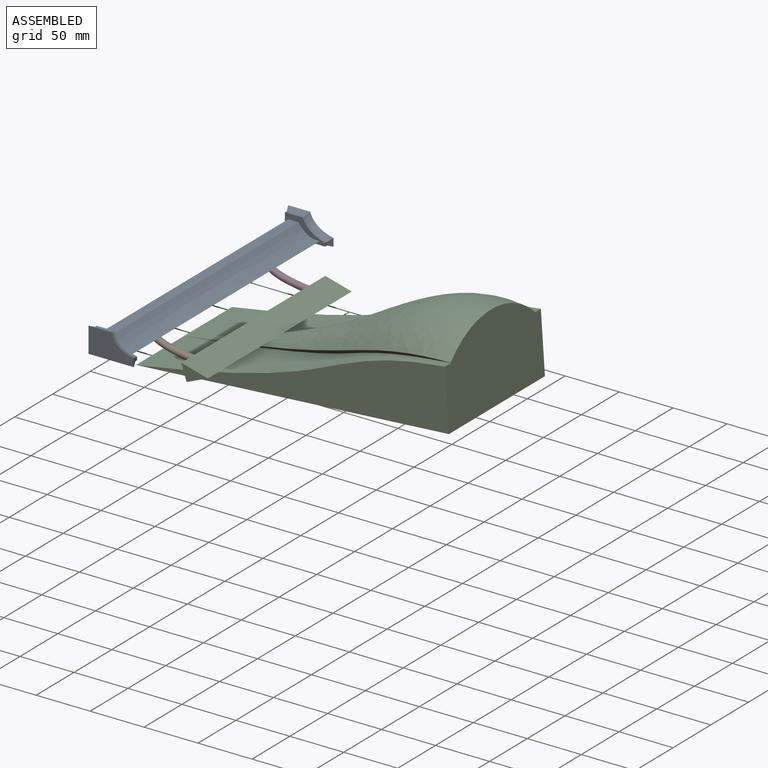
[diagram: assembled view]
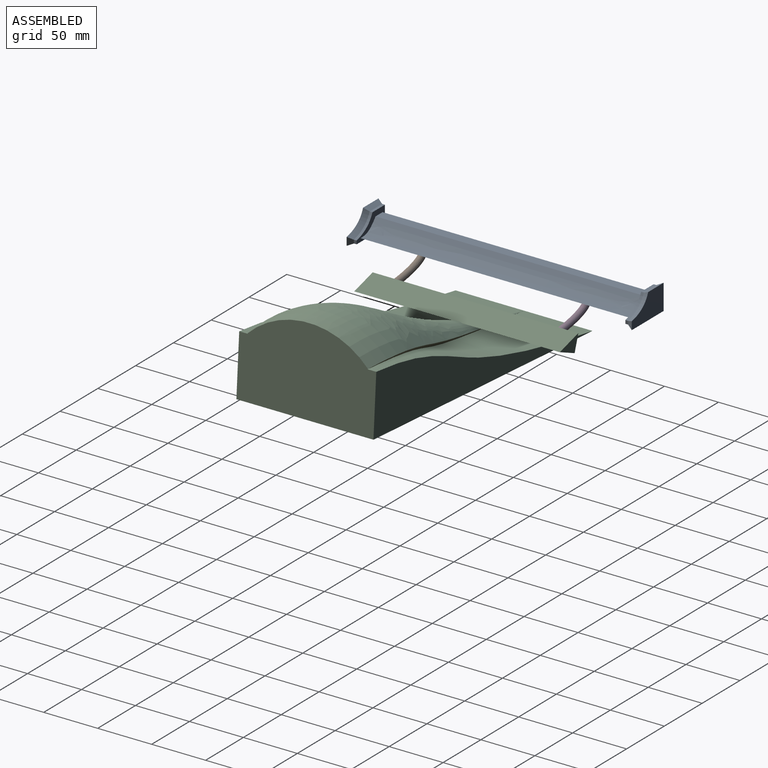
[diagram: assembled view, second angle]
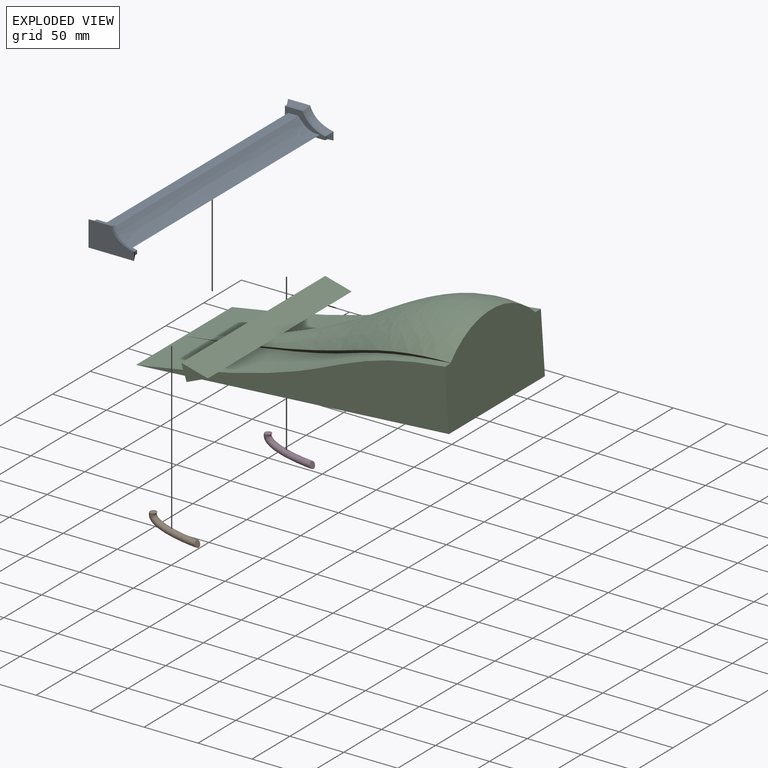
[diagram: exploded view]
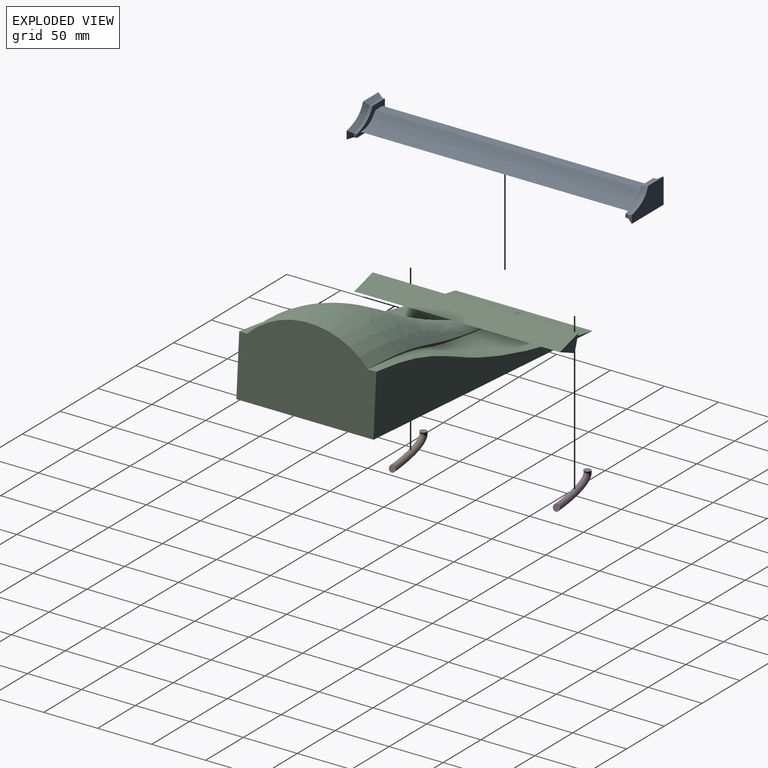
[diagram: exploded view, second angle]
ASSEMBLY  parts=4 mates=3
PART A: 32 faces, bbox 42.5x266.3x24 mm
  f0: plane 248.92x28.95mm, normal (0,0,-1), area 7143.3mm2, adj f1,f3,f10,f22,f29,f31
  f1: extruded ~248.92x19.7mm, area 5851.7mm2, adj f0,f2,f10,f22
  f2: plane 248.92x9.25mm, normal (0,0,1), area 2302.4mm2, adj f1,f3,f10,f22
  f3: plane 248.92x10.73mm, normal (-1,0,0), area 2670.8mm2, adj f0,f2,f10,f22
  f4: plane 42.11x5.08mm, normal (0,0.42,-0.91), area 222.7mm2, adj f5,f8,f9,f15
  f5: plane 7.44x5.13mm, normal (0.91,0.42,0), area 29.5mm2, adj f4,f6,f9,f14
  f6: bspline ~24.29x18.89mm, area 156.1mm2, adj f5,f7,f9,f13
  f7: plane 20.51x5.17mm, normal (0,0.42,0.91), area 103.4mm2, adj f6,f8,f9,f12
  f8: plane 23.61x5.08mm, normal (-0.91,0.42,0), area 119mm2, adj f4,f7,f9,f11
  f9: plane 42.11x23.61mm, normal (0,-1,0), area 750.8mm2, adj f4,f5,f6,f7,f8
  f10: plane 37.37x18.87mm, normal (0,1,0), area 324.7mm2, adj f0,f1,f2,f3,f11,f12,f13,f14
  f11: plane 18.87x2.54mm, normal (-1,0,0), area 47.9mm2, adj f8,f10,f12,f15
  f12: plane 16.46x2.54mm, normal (0,0,1), area 41.8mm2, adj f7,f10,f11,f13
  f13: extruded ~20.9x15.72mm, area 69.1mm2, adj f6,f10,f12,f14
  f14: plane 3.15x2.54mm, normal (1,0,0), area 8mm2, adj f5,f10,f13,f15
  f15: plane 37.37x2.54mm, normal (0,0,-1), area 94.9mm2, adj f4,f10,f11,f14
  f16: plane 42.11x5.08mm, normal (0,-0.42,-0.91), area 222.7mm2, adj f17,f20,f21,f27
  f17: plane 23.61x5.08mm, normal (-0.91,-0.42,0), area 119mm2, adj f16,f18,f21,f26
  f18: plane 20.51x5.17mm, normal (0,-0.42,0.91), area 103.4mm2, adj f17,f19,f21,f25
  f19: bspline ~24.29x18.89mm, area 156.1mm2, adj f18,f20,f21,f24
  f20: plane 7.44x5.13mm, normal (0.91,-0.42,0), area 29.5mm2, adj f16,f19,f21,f23
  f21: plane 42.11x23.61mm, normal (0,1,0), area 750.8mm2, adj f16,f17,f18,f19,f20
  f22: plane 37.37x18.87mm, normal (0,-1,0), area 324.7mm2, adj f0,f1,f2,f3,f23,f24,f25,f26
  f23: plane 3.15x2.54mm, normal (1,0,0), area 8mm2, adj f20,f22,f24,f27
  f24: extruded ~20.9x15.72mm, area 69.1mm2, adj f19,f22,f23,f25
  f25: plane 16.46x2.54mm, normal (0,0,1), area 41.8mm2, adj f18,f22,f24,f26
  f26: plane 18.87x2.54mm, normal (-1,0,0), area 47.9mm2, adj f17,f22,f25,f27
  f27: plane 37.37x2.54mm, normal (0,0,-1), area 94.9mm2, adj f16,f22,f23,f26
  f28: cone r=0mm half-angle=59deg, axis (0,0,-1), area 36.9mm2, adj f29
  f29: cylinder r=3.17mm len=6.35mm, axis (0,0,-1), area 0.5mm2, adj f0,f28
  f30: cone r=0mm half-angle=59deg, axis (0,0,-1), area 36.9mm2, adj f31
  f31: cylinder r=3.17mm len=6.35mm, axis (0,0,-1), area 0.5mm2, adj f0,f30
PART B: 3 faces, bbox 38.3x12.7x32.1 mm
  f0: plane 6.35x6.35mm, normal (1,0,0), area 31.7mm2, adj f2
  f1: plane 6.35x6.03mm, normal (0.31,0,0.95), area 31.7mm2, adj f2
  f2: bspline ~38.27x32.1mm, area 920.3mm2, adj f0,f1
PART C: 19 faces, bbox 290.6x190.5x80.9 mm
  f0: plane 290.63x60.43mm, normal (0,-0.71,-0.71), area 1077mm2, adj f2,f3,f16
  f1: plane 290.63x60.43mm, normal (0,0.71,-0.71), area 1077mm2, adj f2,f3,f15
  f2: revolved ~290.63x114.42mm, area 19397.9mm2, adj f0,f1,f3,f4,f5,f6,f7
  f3: plane 127x79.02mm, normal (1,0,0), area 8872.8mm2, adj f0,f1,f2,f14,f15,f16,f17,f18
  f4: plane 90.61x20.22mm, normal (0.32,0,-0.95), area 1902.1mm2, adj f2,f6,f7,f8
  f5: plane 90.61x20.22mm, normal (0.32,0,-0.95), area 1902.1mm2, adj f2,f6,f7,f9
  f6: plane 190.5x24.1mm, normal (0.32,0,0.95), area 4842mm2, adj f2,f4,f5,f7,f8,f9
  f7: plane 190.5x15.12mm, normal (-0.97,0,-0.25), area 2887.7mm2, adj f2,f4,f5,f6,f8,f9,f11,f13
  f8: plane 24.1x15.12mm, normal (0,-1,0), area 166.3mm2, adj f4,f6,f7
  f9: plane 24.1x15.12mm, normal (0,1,0), area 166.3mm2, adj f5,f6,f7
  f10: cone r=0mm half-angle=59deg, axis (-0.97,0,-0.25), area 36.9mm2, adj f11
  f11: cylinder r=3.17mm len=6.35mm, axis (-0.97,0,-0.25), area 0.5mm2, adj f7,f10
  f12: cone r=0mm half-angle=59deg, axis (-0.97,0,-0.25), area 36.9mm2, adj f13
  f13: cylinder r=3.17mm len=6.35mm, axis (-0.97,0,-0.25), area 0.5mm2, adj f7,f12
  f14: plane 290.63x127mm, normal (0,0,-1), area 36909.5mm2, adj f3,f15,f16,f17,f18
  f15: extruded ~290.63x63.5mm, area 11000.7mm2, adj f1,f3,f14,f18
  f16: extruded ~290.63x63.5mm, area 11000.7mm2, adj f0,f3,f14,f17
  f17: plane 290.63x55.54mm, normal (0,-1,0), area 7666.8mm2, adj f3,f14,f16
  f18: plane 290.63x55.54mm, normal (0,1,0), area 7666.8mm2, adj f3,f14,f15
PART D: same geometry as B
PLACE A t=(-71.66,2.88,32.53)mm
PLACE B rot(axis=(0,-1,0),18.3deg) t=(-44.3,-73.12,16.65)mm
PLACE C rot(axis=(0,-1,0),3.9deg) t=(45.73,2.88,0.97)mm
PLACE D rot(axis=(0,-1,0),18.3deg) t=(-44.3,78.87,16.65)mm
MATE fastened D.f1 <-> A.f30  axis (0,0,1) through (-85.29,78.87,32.53)mm
MATE fastened B.f1 <-> A.f28  axis (0,0,1) through (-85.29,-73.12,32.53)mm
MATE fastened C.f11 <-> B.f0  axis (-0.95,0,-0.31) through (-44.3,-73.12,16.65)mm
